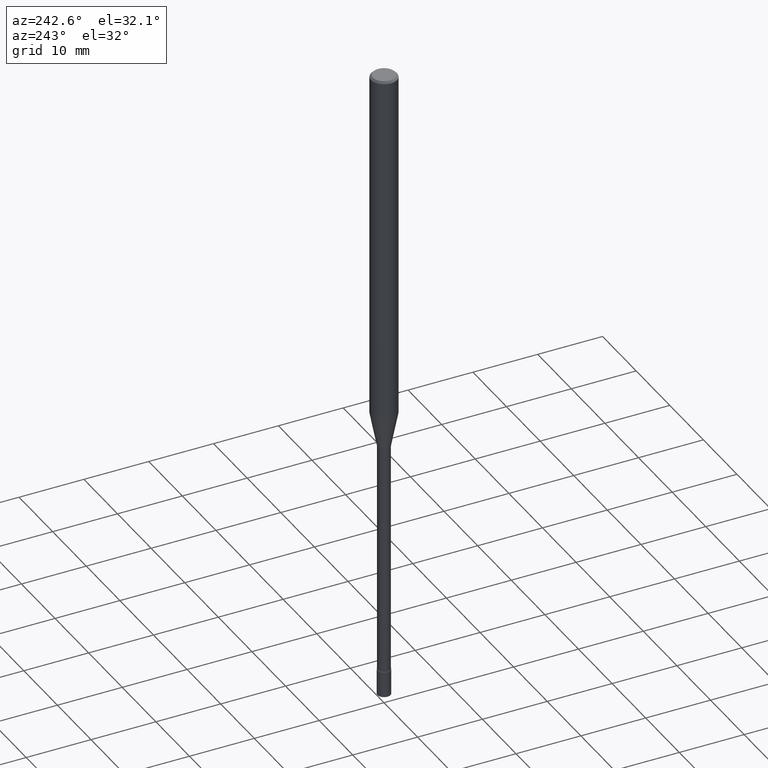
[diagram: clean part render]
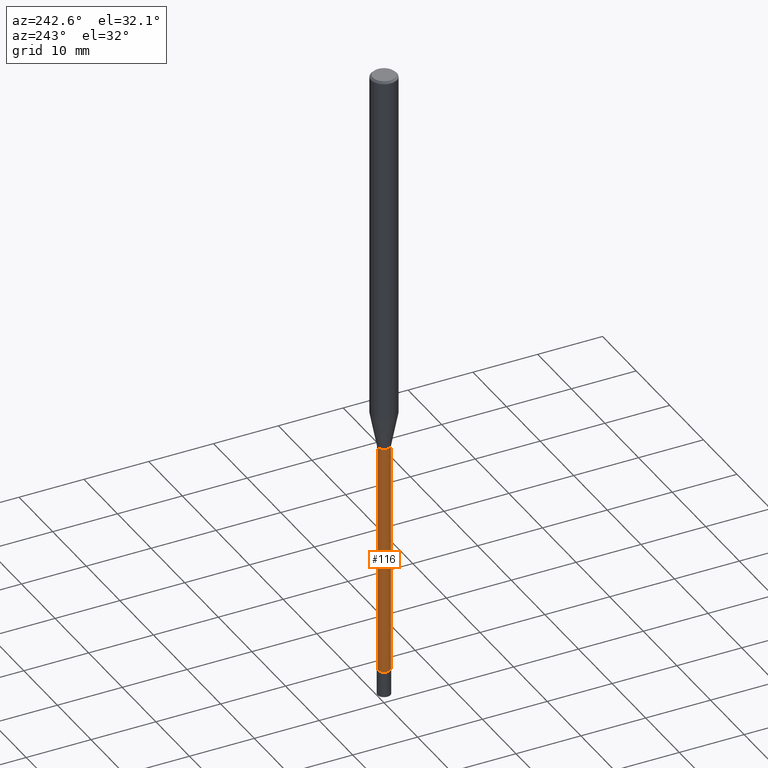
[diagram: same view with one face highlighted and labeled with its STEP entity id]
A machine part, auxiliary view. The second image highlights one B-rep face of the part: STEP entity #116.
In plain terms, the highlighted cylindrical surface (edge-blend (fillet) strip) has radius 0.9499 mm, axis along (-0, -0, 1).
Its self-contained STEP definition (entity closure, byte-faithful):
#116=ADVANCED_FACE('',(#256),#257,.T.);
#120=EDGE_CURVE('',#138,#176,#261,.T.);
#128=EDGE_CURVE('',#136,#138,#270,.T.);
#136=VERTEX_POINT('',#280);
#138=VERTEX_POINT('',#282);
#142=EDGE_CURVE('',#160,#176,#286,.T.);
#160=VERTEX_POINT('',#309);
#176=VERTEX_POINT('',#326);
#198=EDGE_CURVE('',#160,#136,#350,.T.);
#256=FACE_OUTER_BOUND('',#411,.T.);
#257=CYLINDRICAL_SURFACE('',#412,0.94995);
#261=LINE('',#418,#419);
#270=CIRCLE('',#431,0.94995);
#280=CARTESIAN_POINT('',(1.16331480581357E-016,-0.94995,-60.0));
#282=CARTESIAN_POINT('',(0.0,0.94995,-60.0));
#286=CIRCLE('',#449,0.94995);
#309=CARTESIAN_POINT('',(1.16331480581357E-016,-0.94995,-96.0));
#326=CARTESIAN_POINT('',(0.0,0.94995,-96.0));
#350=LINE('',#522,#523);
#411=EDGE_LOOP('',(#573,#574,#575,#576));
#412=AXIS2_PLACEMENT_3D('',#577,#578,#579);
#418=CARTESIAN_POINT('',(-1.16331480581357E-016,0.94995,-78.0));
#419=VECTOR('',#583,1.0);
#431=AXIS2_PLACEMENT_3D('',#596,#597,#598);
#449=AXIS2_PLACEMENT_3D('',#615,#616,#617);
#522=CARTESIAN_POINT('',(1.16331480581357E-016,-0.94995,-78.0));
#523=VECTOR('',#697,1.0);
#573=ORIENTED_EDGE('',*,*,#120,.T.);
#574=ORIENTED_EDGE('',*,*,#142,.F.);
#575=ORIENTED_EDGE('',*,*,#198,.T.);
#576=ORIENTED_EDGE('',*,*,#128,.T.);
#577=CARTESIAN_POINT('',(0.0,0.0,-78.0));
#578=DIRECTION('',(-0.0,-0.0,1.0));
#579=DIRECTION('',(0.0,1.0,0.0));
#583=DIRECTION('',(0.0,0.0,-1.0));
#596=CARTESIAN_POINT('',(0.0,0.0,-60.0));
#597=DIRECTION('',(0.0,0.0,-1.0));
#598=DIRECTION('',(0.0,1.0,0.0));
#615=CARTESIAN_POINT('',(0.0,0.0,-96.0));
#616=DIRECTION('',(0.0,0.0,-1.0));
#617=DIRECTION('',(0.0,1.0,0.0));
#697=DIRECTION('',(-0.0,-0.0,1.0));